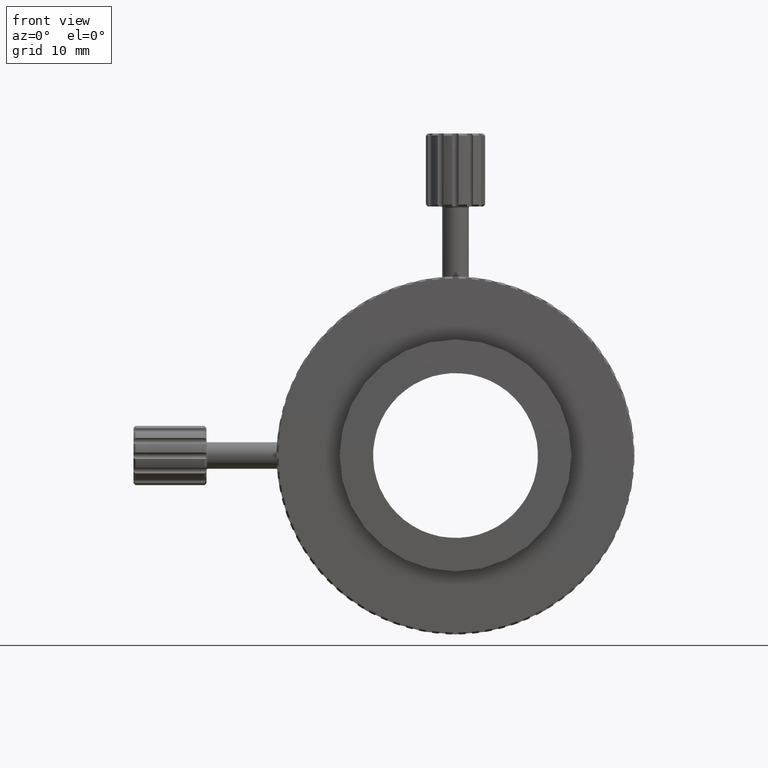
[diagram: clean part render]
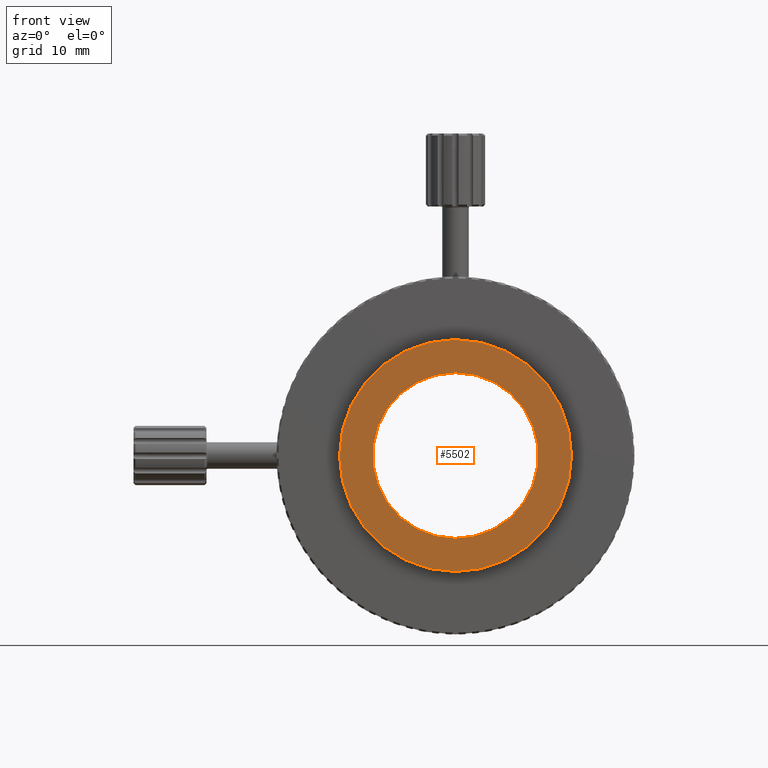
[diagram: same view with one face highlighted and labeled with its STEP entity id]
A machine part, front view. The second image highlights one B-rep face of the part: STEP entity #5502.
In plain terms, the highlighted planar face has unit normal (0, -1, 0).
Its self-contained STEP definition (entity closure, byte-faithful):
#1050 = DIRECTION ( 'NONE',  ( 0.000000000000000000, 0.000000000000000000, 1.000000000000000000 ) ) ;
#1256 = FACE_OUTER_BOUND ( 'NONE', #17469, .T. ) ;
#2180 = CARTESIAN_POINT ( 'NONE',  ( 9.352963249104790933, -2.929857331922868457, 76.45373576090617007 ) ) ;
#2617 = CARTESIAN_POINT ( 'NONE',  ( 9.352963249104790933, -2.929857331922868457, 76.45373576090617007 ) ) ;
#3084 = VERTEX_POINT ( 'NONE', #14035 ) ;
#3802 = EDGE_CURVE ( 'NONE', #3084, #9903, #7038, .T. ) ;
#3941 = DIRECTION ( 'NONE',  ( -0.000000000000000000, 1.000000000000000000, -0.000000000000000000 ) ) ;
#4252 = DIRECTION ( 'NONE',  ( -0.000000000000000000, 1.000000000000000000, -0.000000000000000000 ) ) ;
#4795 = CARTESIAN_POINT ( 'NONE',  ( 9.352963249104790933, -2.929857331922868457, 76.45373576090617007 ) ) ;
#5502 = ADVANCED_FACE ( 'NONE', ( #13820, #1256 ), #15702, .T. ) ;
#5558 = AXIS2_PLACEMENT_3D ( 'NONE', #2180, #3941, #16389 ) ;
#7038 = CIRCLE ( 'NONE', #17454, 17.49999999999998934 ) ;
#7291 = ORIENTED_EDGE ( 'NONE', *, *, #18039, .T. ) ;
#7653 = ORIENTED_EDGE ( 'NONE', *, *, #3802, .F. ) ;
#8355 = CARTESIAN_POINT ( 'NONE',  ( -8.147036750895196633, -2.929857331922868457, 76.45373576090617007 ) ) ;
#9169 = EDGE_CURVE ( 'NONE', #10381, #21423, #12621, .T. ) ;
#9371 = CIRCLE ( 'NONE', #20566, 12.49999999999998401 ) ;
#9903 = VERTEX_POINT ( 'NONE', #14094 ) ;
#9986 = DIRECTION ( 'NONE',  ( -0.000000000000000000, 1.000000000000000000, -0.000000000000000000 ) ) ;
#10187 = ORIENTED_EDGE ( 'NONE', *, *, #11764, .F. ) ;
#10381 = VERTEX_POINT ( 'NONE', #19673 ) ;
#10433 = AXIS2_PLACEMENT_3D ( 'NONE', #2617, #4252, #20332 ) ;
#11764 = EDGE_CURVE ( 'NONE', #9903, #3084, #21629, .T. ) ;
#11851 = CARTESIAN_POINT ( 'NONE',  ( 9.352963249104790933, -2.929857331922868457, 76.45373576090617007 ) ) ;
#12621 = CIRCLE ( 'NONE', #5558, 12.49999999999998401 ) ;
#13373 = DIRECTION ( 'NONE',  ( 0.000000000000000000, 0.000000000000000000, 1.000000000000000000 ) ) ;
#13820 = FACE_BOUND ( 'NONE', #13870, .T. ) ;
#13870 = EDGE_LOOP ( 'NONE', ( #18271, #7291 ) ) ;
#14035 = CARTESIAN_POINT ( 'NONE',  ( 9.352963249104790933, -2.929857331922868457, 93.95373576090615586 ) ) ;
#14094 = CARTESIAN_POINT ( 'NONE',  ( 9.352963249104792709, -2.929857331922868457, 58.95373576090617718 ) ) ;
#15469 = DIRECTION ( 'NONE',  ( 0.000000000000000000, -0.000000000000000000, -1.000000000000000000 ) ) ;
#15702 = PLANE ( 'NONE',  #19384 ) ;
#16389 = DIRECTION ( 'NONE',  ( 0.000000000000000000, 0.000000000000000000, 1.000000000000000000 ) ) ;
#17454 = AXIS2_PLACEMENT_3D ( 'NONE', #11851, #9986, #13373 ) ;
#17469 = EDGE_LOOP ( 'NONE', ( #7653, #10187 ) ) ;
#18039 = EDGE_CURVE ( 'NONE', #21423, #10381, #9371, .T. ) ;
#18271 = ORIENTED_EDGE ( 'NONE', *, *, #9169, .T. ) ;
#19001 = DIRECTION ( 'NONE',  ( -0.000000000000000000, 1.000000000000000000, -0.000000000000000000 ) ) ;
#19211 = CARTESIAN_POINT ( 'NONE',  ( 9.352963249104792709, -2.929857331922868457, 63.95373576090618428 ) ) ;
#19384 = AXIS2_PLACEMENT_3D ( 'NONE', #8355, #20963, #15469 ) ;
#19673 = CARTESIAN_POINT ( 'NONE',  ( 9.352963249104790933, -2.929857331922868457, 88.95373576090615586 ) ) ;
#20332 = DIRECTION ( 'NONE',  ( 0.000000000000000000, 0.000000000000000000, 1.000000000000000000 ) ) ;
#20566 = AXIS2_PLACEMENT_3D ( 'NONE', #4795, #19001, #1050 ) ;
#20963 = DIRECTION ( 'NONE',  ( 0.000000000000000000, -1.000000000000000000, 0.000000000000000000 ) ) ;
#21423 = VERTEX_POINT ( 'NONE', #19211 ) ;
#21629 = CIRCLE ( 'NONE', #10433, 17.49999999999998934 ) ;